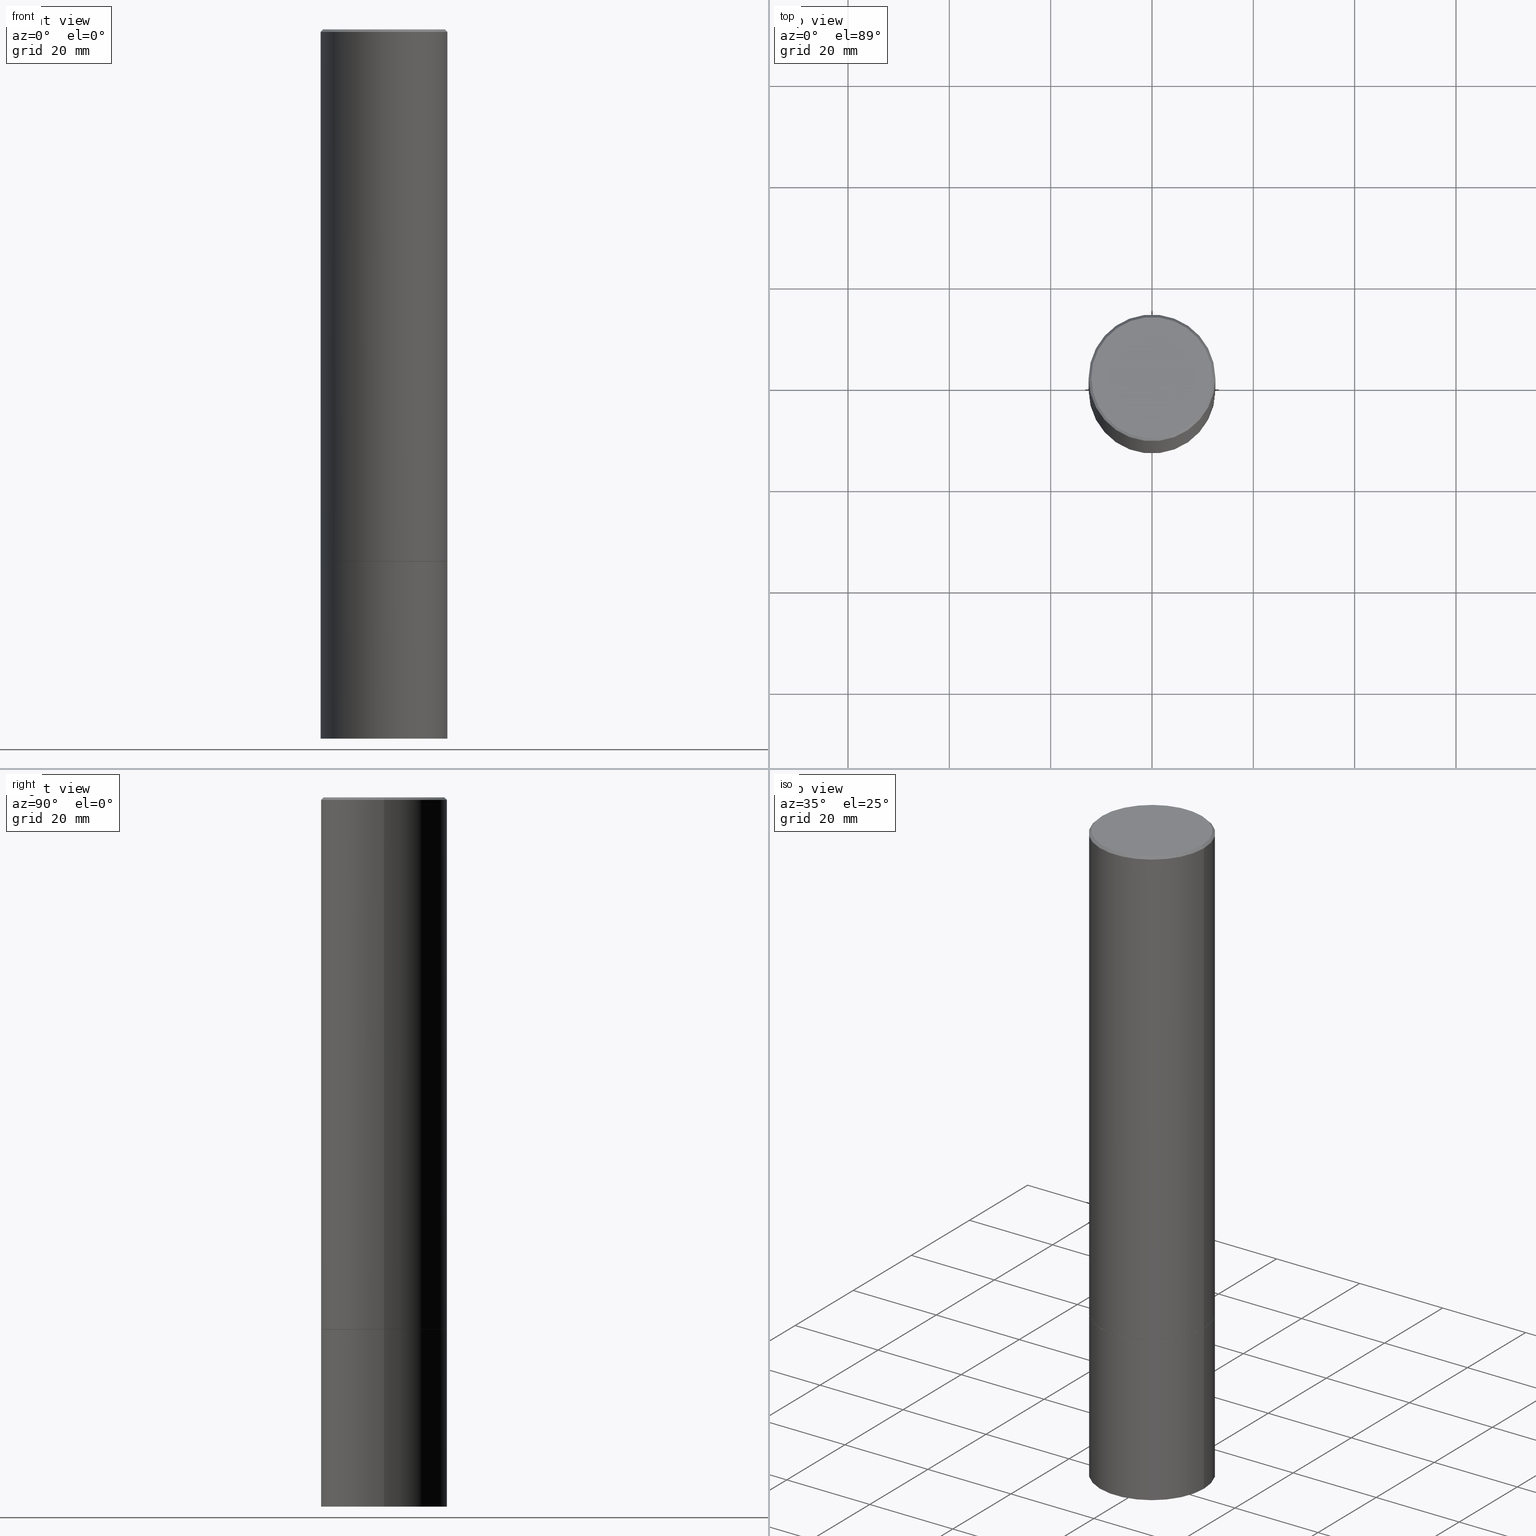
[diagram: canonical four-view strip — front | top / right | iso, engineering-drawing reading convention]
A machine part, canonical four-view strip (front | top / right | iso — engineering-drawing reading convention). The complete STEP part file that produces these views, byte-faithful:
ISO-10303-21;
HEADER;
FILE_DESCRIPTION (( 'STEP AP203' ),
    '1' );
FILE_NAME ('45017.STEP',
    '2024-02-28T08:42:57',
    ( '' ),
    ( '' ),
    'SwSTEP 2.0',
    'SolidWorks 2023',
    '' );
FILE_SCHEMA (( 'CONFIG_CONTROL_DESIGN' ));
ENDSEC;

DATA;
#1 = EDGE_CURVE ( 'NONE', #331, #346, #47, .T. ) ;
#2 = APPROVAL ( #196, 'UNSPECIFIED' ) ;
#3 = DIRECTION ( 'NONE',  ( 0.000000000000000000, 0.000000000000000000, 1.000000000000000000 ) ) ;
#4 = CARTESIAN_POINT ( 'NONE',  ( 0.4911499999999999755, -1.786276767765540380E-14, -4.133799999999999919 ) ) ;
#5 = AXIS2_PLACEMENT_3D ( 'NONE', #360, #216, #81 ) ;
#6 = APPROVAL_STATUS ( 'not_yet_approved' ) ;
#7 = ORIENTED_EDGE ( 'NONE', *, *, #91, .T. ) ;
#8 = APPROVAL ( #32, 'UNSPECIFIED' ) ;
#9 = ORIENTED_EDGE ( 'NONE', *, *, #68, .T. ) ;
#10 = PLANE ( 'NONE',  #362 ) ;
#11 = ADVANCED_FACE ( 'NONE', ( #67 ), #49, .T. ) ;
#12 = ORIENTED_EDGE ( 'NONE', *, *, #226, .T. ) ;
#13 = VERTEX_POINT ( 'NONE', #352 ) ;
#14 = AXIS2_PLACEMENT_3D ( 'NONE', #183, #287, #261 ) ;
#15 = LOCAL_TIME ( 3, 42, 57.00000000000000000, #181 ) ;
#16 = ORIENTED_EDGE ( 'NONE', *, *, #159, .F. ) ;
#17 =( NAMED_UNIT ( * ) PLANE_ANGLE_UNIT ( ) SI_UNIT ( $, .RADIAN. ) );
#18 = CARTESIAN_POINT ( 'NONE',  ( 4.890937612370302060E-31, -6.982962677686331052E-17, -0.02000000000000011491 ) ) ;
#19 = ADVANCED_FACE ( 'NONE', ( #126 ), #354, .T. ) ;
#20 = MANIFOLD_SOLID_BREP ( 'Body-Move/Copy2[1]', #177 ) ;
#21 = DIRECTION ( 'NONE',  ( 1.000000000000000000, -6.982962677686264344E-15, 0.000000000000000000 ) ) ;
#22 = ORIENTED_EDGE ( 'NONE', *, *, #62, .T. ) ;
#23 = AXIS2_PLACEMENT_3D ( 'NONE', #28, #253, #93 ) ;
#24 = DIRECTION ( 'NONE',  ( -2.445468806185136597E-29, 3.491481338843145583E-15, 1.000000000000000000 ) ) ;
#25 = EDGE_LOOP ( 'NONE', ( #296, #29 ) ) ;
#26 = ORIENTED_EDGE ( 'NONE', *, *, #1, .F. ) ;
#27 = PERSON_AND_ORGANIZATION ( #41, #255 ) ;
#28 = CARTESIAN_POINT ( 'NONE',  ( -2.087702828670439639E-46, 2.980686340760894400E-32, 8.537024980200822558E-18 ) ) ;
#29 = ORIENTED_EDGE ( 'NONE', *, *, #124, .F. ) ;
#30 = APPROVAL_ROLE ( '' ) ;
#31 = AXIS2_PLACEMENT_3D ( 'NONE', #102, #301, #192 ) ;
#32 = APPROVAL_STATUS ( 'not_yet_approved' ) ;
#33 = DIRECTION ( 'NONE',  ( -1.000000000000000000, 6.982962677686265922E-15, 0.000000000000000000 ) ) ;
#34 = DIRECTION ( 'NONE',  ( -2.445468806185136597E-29, 3.491481338843145583E-15, 1.000000000000000000 ) ) ;
#35 = FACE_OUTER_BOUND ( 'NONE', #25, .T. ) ;
#36 = CALENDAR_DATE ( 2024, 28, 2 ) ;
#37 = CC_DESIGN_APPROVAL ( #8, ( #136 ) ) ;
#38 = APPLICATION_CONTEXT ( 'configuration controlled 3d designs of mechanical parts and assemblies' ) ;
#39 = VERTEX_POINT ( 'NONE', #52 ) ;
#40 = PERSON_AND_ORGANIZATION_ROLE ( 'creator' ) ;
#41 = PERSON ( 'UNSPECIFIED', 'UNSPECIFIED', 'UNSPECIFIED', ('UNSPECIFIED'), ('UNSPECIFIED'), ('UNSPECIFIED') ) ;
#42 = DATE_TIME_ROLE ( 'classification_date' ) ;
#43 = ORIENTED_EDGE ( 'NONE', *, *, #267, .F. ) ;
#44 = AXIS2_PLACEMENT_3D ( 'NONE', #231, #94, #350 ) ;
#45 = ADVANCED_FACE ( 'NONE', ( #223 ), #222, .T. ) ;
#46 = DIRECTION ( 'NONE',  ( 1.000000000000000000, -6.982962677686265922E-15, 0.000000000000000000 ) ) ;
#47 = LINE ( 'NONE', #164, #191 ) ;
#48 = CARTESIAN_POINT ( 'NONE',  ( 0.4921499999999999764, -1.786975064033308982E-14, -4.133799999999999919 ) ) ;
#49 = CONICAL_SURFACE ( 'NONE', #14, 0.4921499999999996433, 0.7853981633974449483 ) ;
#50 = CIRCLE ( 'NONE', #363, 0.4921499999999999764 ) ;
#51 = APPLICATION_PROTOCOL_DEFINITION ( 'international standard', 'config_control_design', 1994, #38 ) ;
#52 = CARTESIAN_POINT ( 'NONE',  ( -0.4721499999999996255, 3.331920641657998857E-15, 8.537024980177643606E-18 ) ) ;
#53 = LINE ( 'NONE', #285, #299 ) ;
#54 = CARTESIAN_POINT ( 'NONE',  ( 0.000000000000000000, 0.000000000000000000, 0.000000000000000000 ) ) ;
#55 = CYLINDRICAL_SURFACE ( 'NONE', #212, 0.4921499999999998098 ) ;
#56 = EDGE_LOOP ( 'NONE', ( #26, #70, #278, #305 ) ) ;
#57 = VECTOR ( 'NONE', #337, 39.37007874015748143 ) ;
#58 = DIRECTION ( 'NONE',  ( -0.7071067811865451302, 2.468850131082231817E-15, -0.7071067811865499042 ) ) ;
#59 = CALENDAR_DATE ( 2024, 28, 2 ) ;
#60 = CARTESIAN_POINT ( 'NONE',  ( -0.4921499999999996433, 3.366835455046430112E-15, -0.02000000000000011491 ) ) ;
#61 = CARTESIAN_POINT ( 'NONE',  ( 0.000000000000000000, 0.000000000000000000, 0.000000000000000000 ) ) ;
#62 = EDGE_CURVE ( 'NONE', #330, #224, #202, .T. ) ;
#63 = CARTESIAN_POINT ( 'NONE',  ( 1.347893496593123646E-28, -1.924434684343564878E-14, -5.511800000000000033 ) ) ;
#64 = CIRCLE ( 'NONE', #112, 0.4921499999999996433 ) ;
#65 = CYLINDRICAL_SURFACE ( 'NONE', #76, 0.4921499999999999764 ) ;
#66 = APPROVAL_DATE_TIME ( #252, #8 ) ;
#67 = FACE_OUTER_BOUND ( 'NONE', #237, .T. ) ;
#68 = EDGE_CURVE ( 'NONE', #219, #13, #101, .T. ) ;
#69 = PERSON_AND_ORGANIZATION ( #41, #255 ) ;
#70 = ORIENTED_EDGE ( 'NONE', *, *, #201, .T. ) ;
#71 = LOCAL_TIME ( 3, 42, 57.00000000000000000, #92 ) ;
#72 = APPROVAL_DATE_TIME ( #236, #150 ) ;
#73 = CARTESIAN_POINT ( 'NONE',  ( 0.4921499999999999764, -3.436665081823295777E-15, 2.399810400207969603E-29 ) ) ;
#74 = PERSON_AND_ORGANIZATION_ROLE ( 'classification_officer' ) ;
#75 = ORIENTED_EDGE ( 'NONE', *, *, #179, .T. ) ;
#76 = AXIS2_PLACEMENT_3D ( 'NONE', #117, #115, #99 ) ;
#77 =( CONVERSION_BASED_UNIT ( 'INCH', #215 ) LENGTH_UNIT ( ) NAMED_UNIT ( #166 ) );
#78 = ORIENTED_EDGE ( 'NONE', *, *, #333, .F. ) ;
#79 =( NAMED_UNIT ( * ) SI_UNIT ( $, .STERADIAN. ) SOLID_ANGLE_UNIT ( ) );
#80 = DIRECTION ( 'NONE',  ( -2.445468806185136597E-29, 3.491481338843145583E-15, 1.000000000000000000 ) ) ;
#81 = DIRECTION ( 'NONE',  ( 1.000000000000000000, -6.982962677686265922E-15, 4.876006802227162976E-29 ) ) ;
#82 = CARTESIAN_POINT ( 'NONE',  ( 0.4721499999999996255, -3.342703923013973002E-15, 8.537024980224040028E-18 ) ) ;
#83 = FACE_OUTER_BOUND ( 'NONE', #298, .T. ) ;
#84 = CC_DESIGN_PERSON_AND_ORGANIZATION_ASSIGNMENT ( #69, #234, ( #318 ) ) ;
#85 = ORIENTED_EDGE ( 'NONE', *, *, #91, .F. ) ;
#86 = CARTESIAN_POINT ( 'NONE',  ( 1.010907895100811684E-28, -1.443308555850979562E-14, -4.133799999999999919 ) ) ;
#87 = CIRCLE ( 'NONE', #162, 0.4921500000000000319 ) ;
#88 = ORIENTED_EDGE ( 'NONE', *, *, #100, .T. ) ;
#89 = DATE_TIME_ROLE ( 'creation_date' ) ;
#90 = CARTESIAN_POINT ( 'NONE',  ( 3.436665081823430672E-15, 0.4921499999999807140, -5.511800000000001809 ) ) ;
#91 = EDGE_CURVE ( 'NONE', #39, #346, #348, .T. ) ;
#92 = COORDINATED_UNIVERSAL_TIME_OFFSET ( 5, 0, .BEHIND. ) ;
#93 = DIRECTION ( 'NONE',  ( 1.000000000000000000, -6.982962677686265922E-15, 4.876006802227162976E-29 ) ) ;
#94 = DIRECTION ( 'NONE',  ( -2.445468806185136597E-29, 3.491481338843145583E-15, 1.000000000000000000 ) ) ;
#95 = DESIGN_CONTEXT ( 'detailed design', #190, 'design' ) ;
#96 = AXIS2_PLACEMENT_3D ( 'NONE', #198, #214, #329 ) ;
#97 = SECURITY_CLASSIFICATION ( '', '', #104 ) ;
#98 = LOCAL_TIME ( 3, 42, 57.00000000000000000, #209 ) ;
#99 = DIRECTION ( 'NONE',  ( 1.000000000000000000, -6.982962677686265922E-15, 4.876176775795935793E-29 ) ) ;
#100 = EDGE_CURVE ( 'NONE', #116, #316, #138, .T. ) ;
#101 = CIRCLE ( 'NONE', #128, 0.4921499999999999764 ) ;
#102 = CARTESIAN_POINT ( 'NONE',  ( 0.000000000000000000, 0.000000000000000000, 0.000000000000000000 ) ) ;
#103 = ADVANCED_FACE ( 'NONE', ( #314 ), #65, .T. ) ;
#104 = SECURITY_CLASSIFICATION_LEVEL ( 'unclassified' ) ;
#105 = ORIENTED_EDGE ( 'NONE', *, *, #165, .T. ) ;
#106 = CARTESIAN_POINT ( 'NONE',  ( 4.890937612370302060E-31, -6.982962677686331052E-17, -0.02000000000000011491 ) ) ;
#107 = CONICAL_SURFACE ( 'NONE', #306, 0.4911499999999999755, 0.7853981633975849475 ) ;
#108 = CIRCLE ( 'NONE', #23, 0.4721499999999996255 ) ;
#109 = CARTESIAN_POINT ( 'NONE',  ( 0.4911499999999999755, -1.786276767765540380E-14, -4.133799999999999919 ) ) ;
#110 = ORIENTED_EDGE ( 'NONE', *, *, #155, .T. ) ;
#111 = CARTESIAN_POINT ( 'NONE',  ( -0.4921499999999999764, -1.334178012692939009E-14, -4.133799999999999919 ) ) ;
#112 = AXIS2_PLACEMENT_3D ( 'NONE', #106, #326, #46 ) ;
#113 = EDGE_CURVE ( 'NONE', #355, #331, #87, .T. ) ;
#114 = ORIENTED_EDGE ( 'NONE', *, *, #68, .F. ) ;
#115 = DIRECTION ( 'NONE',  ( -2.445468806185136597E-29, 3.491481338843145583E-15, 1.000000000000000000 ) ) ;
#116 = VERTEX_POINT ( 'NONE', #4 ) ;
#117 = CARTESIAN_POINT ( 'NONE',  ( 0.000000000000000000, 0.000000000000000000, 0.000000000000000000 ) ) ;
#118 = DIRECTION ( 'NONE',  ( -1.000000000000000000, 6.982962677686265922E-15, -4.876176775795935793E-29 ) ) ;
#119 = DIRECTION ( 'NONE',  ( -1.000000000000000000, 6.982962677686265922E-15, -4.876176775795935793E-29 ) ) ;
#120 = PRODUCT ( '45017', '45017', '', ( #310 ) ) ;
#121 = CARTESIAN_POINT ( 'NONE',  ( 1.347893496593123646E-28, -1.924434684343564878E-14, -5.511800000000000033 ) ) ;
#122 = APPROVAL_ROLE ( '' ) ;
#123 = CC_DESIGN_APPROVAL ( #150, ( #97 ) ) ;
#124 = EDGE_CURVE ( 'NONE', #316, #116, #156, .T. ) ;
#125 = ORIENTED_EDGE ( 'NONE', *, *, #113, .F. ) ;
#126 = FACE_OUTER_BOUND ( 'NONE', #145, .T. ) ;
#127 = DIRECTION ( 'NONE',  ( -2.445468806185136877E-29, 3.491481338843145188E-15, 1.000000000000000000 ) ) ;
#128 = AXIS2_PLACEMENT_3D ( 'NONE', #63, #24, #143 ) ;
#129 = CC_DESIGN_SECURITY_CLASSIFICATION ( #97, ( #318 ) ) ;
#130 = DIRECTION ( 'NONE',  ( -2.445468806185136877E-29, 3.491481338843145188E-15, 1.000000000000000000 ) ) ;
#131 = APPROVAL_DATE_TIME ( #315, #2 ) ;
#132 = ADVANCED_FACE ( 'NONE', ( #227 ), #338, .T. ) ;
#133 = AXIS2_PLACEMENT_3D ( 'NONE', #280, #309, #33 ) ;
#134 = CARTESIAN_POINT ( 'NONE',  ( -0.4921500000000000319, -3.752775777930571902E-15, -4.132800000000000473 ) ) ;
#135 = ORIENTED_EDGE ( 'NONE', *, *, #259, .T. ) ;
#136 = PRODUCT_DEFINITION ( 'UNKNOWN', '', #318, #95 ) ;
#137 = LINE ( 'NONE', #364, #57 ) ;
#138 = CIRCLE ( 'NONE', #44, 0.4911499999999999755 ) ;
#139 = VECTOR ( 'NONE', #268, 39.37007874015748143 ) ;
#140 = VERTEX_POINT ( 'NONE', #48 ) ;
#141 = ORIENTED_EDGE ( 'NONE', *, *, #217, .T. ) ;
#142 = PERSON_AND_ORGANIZATION ( #41, #255 ) ;
#143 = DIRECTION ( 'NONE',  ( 1.000000000000000000, -6.982962677686265922E-15, 0.000000000000000000 ) ) ;
#144 = COORDINATED_UNIVERSAL_TIME_OFFSET ( 5, 0, .BEHIND. ) ;
#145 = EDGE_LOOP ( 'NONE', ( #9, #289, #320, #321 ) ) ;
#146 = CARTESIAN_POINT ( 'NONE',  ( 1.010907895100811684E-28, -1.443308555850979562E-14, -4.133799999999999919 ) ) ;
#147 = ORIENTED_EDGE ( 'NONE', *, *, #259, .F. ) ;
#148 = CARTESIAN_POINT ( 'NONE',  ( 0.4921499999999998098, -3.436665081823294593E-15, 2.399810400207968762E-29 ) ) ;
#149 = LOCAL_TIME ( 3, 42, 57.00000000000000000, #339 ) ;
#150 = APPROVAL ( #6, 'UNSPECIFIED' ) ;
#151 = PERSON_AND_ORGANIZATION_ROLE ( 'creator' ) ;
#152 = MANIFOLD_SOLID_BREP ( 'Body-Move/Copy2[2]', #317 ) ;
#153 = DIRECTION ( 'NONE',  ( 1.000000000000000000, -6.982962677686265133E-15, 0.000000000000000000 ) ) ;
#154 = DIRECTION ( 'NONE',  ( -2.445468806185136597E-29, 3.491481338843145583E-15, 1.000000000000000000 ) ) ;
#155 = EDGE_CURVE ( 'NONE', #116, #355, #265, .T. ) ;
#156 = CIRCLE ( 'NONE', #247, 0.4911499999999999755 ) ;
#157 = CIRCLE ( 'NONE', #328, 0.4921499999999999764 ) ;
#158 = ORIENTED_EDGE ( 'NONE', *, *, #1, .T. ) ;
#159 = EDGE_CURVE ( 'NONE', #13, #366, #53, .T. ) ;
#160 = EDGE_LOOP ( 'NONE', ( #358, #254, #7, #75 ) ) ;
#161 = DIRECTION ( 'NONE',  ( 1.000000000000000000, -6.982962677686265922E-15, 0.000000000000000000 ) ) ;
#162 = AXIS2_PLACEMENT_3D ( 'NONE', #284, #34, #153 ) ;
#163 = ORIENTED_EDGE ( 'NONE', *, *, #124, .T. ) ;
#164 = CARTESIAN_POINT ( 'NONE',  ( -0.4921499999999998098, 3.496936074043331714E-15, -2.420853904668950949E-29 ) ) ;
#165 = EDGE_CURVE ( 'NONE', #219, #140, #208, .T. ) ;
#166 = DIMENSIONAL_EXPONENTS ( 1.000000000000000000, 0.000000000000000000, 0.000000000000000000, 0.000000000000000000, 0.000000000000000000, 0.000000000000000000, 0.000000000000000000 ) ;
#167 = ADVANCED_BREP_SHAPE_REPRESENTATION ( '45017', ( #20, #152, #180 ), #195 ) ;
#168 = DIRECTION ( 'NONE',  ( 1.000000000000000000, -6.982962677686261977E-15, 0.000000000000000000 ) ) ;
#169 = FACE_OUTER_BOUND ( 'NONE', #257, .T. ) ;
#170 = AXIS2_PLACEMENT_3D ( 'NONE', #54, #80, #221 ) ;
#171 = EDGE_LOOP ( 'NONE', ( #12, #293 ) ) ;
#172 = DIRECTION ( 'NONE',  ( -2.445468806185136597E-29, 3.491481338843145583E-15, 1.000000000000000000 ) ) ;
#173 = CC_DESIGN_PERSON_AND_ORGANIZATION_ASSIGNMENT ( #228, #151, ( #136 ) ) ;
#174 = DIRECTION ( 'NONE',  ( 1.000000000000000000, -6.982962677686261977E-15, 0.000000000000000000 ) ) ;
#175 = CARTESIAN_POINT ( 'NONE',  ( 1.010907895100811684E-28, -1.443308555850979562E-14, -4.133799999999999919 ) ) ;
#176 = DIRECTION ( 'NONE',  ( -2.445468806185136597E-29, 3.491481338843145583E-15, 1.000000000000000000 ) ) ;
#177 = CLOSED_SHELL ( 'NONE', ( #19, #132, #276, #103 ) ) ;
#178 = FACE_OUTER_BOUND ( 'NONE', #160, .T. ) ;
#179 = EDGE_CURVE ( 'NONE', #346, #224, #64, .T. ) ;
#180 = AXIS2_PLACEMENT_3D ( 'NONE', #61, #3, #344 ) ;
#181 = COORDINATED_UNIVERSAL_TIME_OFFSET ( 5, 0, .BEHIND. ) ;
#182 = PRODUCT_DEFINITION_SHAPE ( 'NONE', 'NONE',  #136 ) ;
#183 = CARTESIAN_POINT ( 'NONE',  ( 4.890937612370302060E-31, -6.982962677686331052E-17, -0.02000000000000011491 ) ) ;
#184 = SHAPE_DEFINITION_REPRESENTATION ( #182, #167 ) ;
#185 = PERSON_AND_ORGANIZATION ( #41, #255 ) ;
#186 = VECTOR ( 'NONE', #311, 39.37007874015748143 ) ;
#187 = ORIENTED_EDGE ( 'NONE', *, *, #217, .F. ) ;
#188 = ORIENTED_EDGE ( 'NONE', *, *, #297, .T. ) ;
#189 = ADVANCED_FACE ( 'NONE', ( #264 ), #10, .F. ) ;
#190 = APPLICATION_CONTEXT ( 'configuration controlled 3d designs of mechanical parts and assemblies' ) ;
#191 = VECTOR ( 'NONE', #206, 39.37007874015748143 ) ;
#192 = DIRECTION ( 'NONE',  ( 1.000000000000000000, -6.982962677686265922E-15, 4.876176775795935793E-29 ) ) ;
#193 = DIRECTION ( 'NONE',  ( -2.445468806185136597E-29, 3.491481338843145583E-15, 1.000000000000000000 ) ) ;
#194 = VECTOR ( 'NONE', #130, 39.37007874015748143 ) ;
#195 =( GEOMETRIC_REPRESENTATION_CONTEXT ( 3 ) GLOBAL_UNCERTAINTY_ASSIGNED_CONTEXT ( ( #233 ) ) GLOBAL_UNIT_ASSIGNED_CONTEXT ( ( #77, #17, #79 ) ) REPRESENTATION_CONTEXT ( 'NONE', 'WORKASPACE' ) );
#196 = APPROVAL_STATUS ( 'not_yet_approved' ) ;
#197 = DIRECTION ( 'NONE',  ( 2.438088387897960049E-29, -3.491481338843145188E-15, -1.000000000000000000 ) ) ;
#198 = CARTESIAN_POINT ( 'NONE',  ( 1.010663348220193347E-28, -1.442959407717095419E-14, -4.132800000000000473 ) ) ;
#199 = EDGE_LOOP ( 'NONE', ( #88, #135, #125, #225 ) ) ;
#200 = CARTESIAN_POINT ( 'NONE',  ( 3.436665081823396751E-15, 0.4921499999999855435, -4.133800000000001695 ) ) ;
#201 = EDGE_CURVE ( 'NONE', #331, #355, #286, .T. ) ;
#202 = LINE ( 'NONE', #279, #186 ) ;
#203 = PLANE ( 'NONE',  #300 ) ;
#204 = APPROVAL_PERSON_ORGANIZATION ( #142, #8, #122 ) ;
#205 = CC_DESIGN_DATE_AND_TIME_ASSIGNMENT ( #207, #42, ( #97 ) ) ;
#206 = DIRECTION ( 'NONE',  ( -2.445468806185136877E-29, 3.491481338843145188E-15, 1.000000000000000000 ) ) ;
#207 = DATE_AND_TIME ( #351, #15 ) ;
#208 = LINE ( 'NONE', #73, #194 ) ;
#209 = COORDINATED_UNIVERSAL_TIME_OFFSET ( 5, 0, .BEHIND. ) ;
#210 = ADVANCED_FACE ( 'NONE', ( #169 ), #269, .T. ) ;
#211 = DIRECTION ( 'NONE',  ( -1.000000000000000000, 6.982962677686265922E-15, -4.876176775795935793E-29 ) ) ;
#212 = AXIS2_PLACEMENT_3D ( 'NONE', #273, #335, #357 ) ;
#213 = DIRECTION ( 'NONE',  ( 0.7071067811866441621, -2.468850131083269169E-15, 0.7071067811864508723 ) ) ;
#214 = DIRECTION ( 'NONE',  ( -2.445468806185136597E-29, 3.491481338843145583E-15, 1.000000000000000000 ) ) ;
#215 = LENGTH_MEASURE_WITH_UNIT ( LENGTH_MEASURE( 0.02539999999999999897 ), #271 );
#216 = DIRECTION ( 'NONE',  ( -2.445468806185136597E-29, 3.491481338843145583E-15, 1.000000000000000000 ) ) ;
#217 = EDGE_CURVE ( 'NONE', #224, #346, #327, .T. ) ;
#218 = ORIENTED_EDGE ( 'NONE', *, *, #333, .T. ) ;
#219 = VERTEX_POINT ( 'NONE', #272 ) ;
#220 = CARTESIAN_POINT ( 'NONE',  ( 1.010907895100811684E-28, -1.443308555850979562E-14, -4.133799999999999919 ) ) ;
#221 = DIRECTION ( 'NONE',  ( 1.000000000000000000, -6.982962677686265922E-15, 4.876176775795935793E-29 ) ) ;
#222 = CONICAL_SURFACE ( 'NONE', #263, 0.4911499999999999755, 0.7853981633975849475 ) ;
#223 = FACE_OUTER_BOUND ( 'NONE', #199, .T. ) ;
#224 = VERTEX_POINT ( 'NONE', #336 ) ;
#225 = ORIENTED_EDGE ( 'NONE', *, *, #155, .F. ) ;
#226 = EDGE_CURVE ( 'NONE', #39, #330, #229, .T. ) ;
#227 = FACE_OUTER_BOUND ( 'NONE', #270, .T. ) ;
#228 = PERSON_AND_ORGANIZATION ( #41, #255 ) ;
#229 = CIRCLE ( 'NONE', #5, 0.4721499999999996255 ) ;
#230 = CC_DESIGN_PERSON_AND_ORGANIZATION_ASSIGNMENT ( #27, #281, ( #120 ) ) ;
#231 = CARTESIAN_POINT ( 'NONE',  ( 1.010907895100811684E-28, -1.443308555850979562E-14, -4.133799999999999919 ) ) ;
#232 = LINE ( 'NONE', #148, #139 ) ;
#233 = UNCERTAINTY_MEASURE_WITH_UNIT (LENGTH_MEASURE( 1.000000000000000082E-05 ), #77, 'distance_accuracy_value', 'NONE');
#234 = PERSON_AND_ORGANIZATION_ROLE ( 'design_supplier' ) ;
#235 = ORIENTED_EDGE ( 'NONE', *, *, #297, .F. ) ;
#236 = DATE_AND_TIME ( #290, #98 ) ;
#237 = EDGE_LOOP ( 'NONE', ( #43, #22, #141, #85 ) ) ;
#238 = CARTESIAN_POINT ( 'NONE',  ( 3.297005828269567997E-15, 0.4721499999999996255, -1.644234401644689488E-15 ) ) ;
#239 = FACE_OUTER_BOUND ( 'NONE', #292, .T. ) ;
#240 = AXIS2_PLACEMENT_3D ( 'NONE', #90, #197, #211 ) ;
#241 = APPROVAL_PERSON_ORGANIZATION ( #251, #2, #30 ) ;
#242 = ORIENTED_EDGE ( 'NONE', *, *, #323, .F. ) ;
#243 = ORIENTED_EDGE ( 'NONE', *, *, #343, .T. ) ;
#244 = DIRECTION ( 'NONE',  ( -2.445468806185136597E-29, 3.491481338843145583E-15, 1.000000000000000000 ) ) ;
#245 = DIRECTION ( 'NONE',  ( 1.000000000000000000, -6.982962677686265922E-15, 0.000000000000000000 ) ) ;
#246 = PRODUCT_RELATED_PRODUCT_CATEGORY ( 'detail', '', ( #120 ) ) ;
#247 = AXIS2_PLACEMENT_3D ( 'NONE', #86, #365, #341 ) ;
#248 = CARTESIAN_POINT ( 'NONE',  ( -0.4921499999999996433, 3.366835455046430112E-15, -0.02000000000000011491 ) ) ;
#249 = APPROVAL_PERSON_ORGANIZATION ( #185, #150, #319 ) ;
#250 = ADVANCED_FACE ( 'NONE', ( #83 ), #107, .T. ) ;
#251 = PERSON_AND_ORGANIZATION ( #41, #255 ) ;
#252 = DATE_AND_TIME ( #347, #71 ) ;
#253 = DIRECTION ( 'NONE',  ( -2.445468806185136597E-29, 3.491481338843145583E-15, 1.000000000000000000 ) ) ;
#254 = ORIENTED_EDGE ( 'NONE', *, *, #226, .F. ) ;
#255 = ORGANIZATION ( 'UNSPECIFIED', 'UNSPECIFIED', '' ) ;
#256 = DATE_AND_TIME ( #36, #149 ) ;
#257 = EDGE_LOOP ( 'NONE', ( #313, #158, #187, #242 ) ) ;
#258 = AXIS2_PLACEMENT_3D ( 'NONE', #18, #172, #245 ) ;
#259 = EDGE_CURVE ( 'NONE', #316, #331, #137, .T. ) ;
#260 = CC_DESIGN_PERSON_AND_ORGANIZATION_ASSIGNMENT ( #353, #74, ( #97 ) ) ;
#261 = DIRECTION ( 'NONE',  ( -1.000000000000000000, 6.982962677686265922E-15, 0.000000000000000000 ) ) ;
#262 = CC_DESIGN_DATE_AND_TIME_ASSIGNMENT ( #256, #89, ( #136 ) ) ;
#263 = AXIS2_PLACEMENT_3D ( 'NONE', #304, #176, #275 ) ;
#264 = FACE_OUTER_BOUND ( 'NONE', #171, .T. ) ;
#265 = LINE ( 'NONE', #109, #277 ) ;
#266 = DIRECTION ( 'NONE',  ( 2.438088387897960049E-29, -3.491481338843145188E-15, -1.000000000000000000 ) ) ;
#267 = EDGE_CURVE ( 'NONE', #330, #39, #108, .T. ) ;
#268 = DIRECTION ( 'NONE',  ( -2.445468806185136877E-29, 3.491481338843145188E-15, 1.000000000000000000 ) ) ;
#269 = CYLINDRICAL_SURFACE ( 'NONE', #170, 0.4921499999999998098 ) ;
#270 = EDGE_LOOP ( 'NONE', ( #114, #235 ) ) ;
#271 =( LENGTH_UNIT ( ) NAMED_UNIT ( * ) SI_UNIT ( $, .METRE. ) );
#272 = CARTESIAN_POINT ( 'NONE',  ( 0.4921499999999999764, -2.268101192525894613E-14, -5.511800000000000033 ) ) ;
#273 = CARTESIAN_POINT ( 'NONE',  ( 0.000000000000000000, 0.000000000000000000, 0.000000000000000000 ) ) ;
#274 = DIRECTION ( 'NONE',  ( -2.445468806185136597E-29, 3.491481338843145583E-15, 1.000000000000000000 ) ) ;
#275 = DIRECTION ( 'NONE',  ( 1.000000000000000000, -6.982962677686264344E-15, 0.000000000000000000 ) ) ;
#276 = ADVANCED_FACE ( 'NONE', ( #239 ), #203, .F. ) ;
#277 = VECTOR ( 'NONE', #213, 39.37007874015748143 ) ;
#278 = ORIENTED_EDGE ( 'NONE', *, *, #323, .T. ) ;
#279 = CARTESIAN_POINT ( 'NONE',  ( 0.4921499999999996433, -3.446223716380119982E-15, -0.02000000000000011491 ) ) ;
#280 = CARTESIAN_POINT ( 'NONE',  ( 4.890937612370302060E-31, -6.982962677686331052E-17, -0.02000000000000011491 ) ) ;
#281 = PERSON_AND_ORGANIZATION_ROLE ( 'design_owner' ) ;
#282 = ADVANCED_FACE ( 'NONE', ( #35 ), #308, .F. ) ;
#283 = APPLICATION_PROTOCOL_DEFINITION ( 'international standard', 'config_control_design', 1994, #190 ) ;
#284 = CARTESIAN_POINT ( 'NONE',  ( 1.010663348220193347E-28, -1.442959407717095419E-14, -4.132800000000000473 ) ) ;
#285 = CARTESIAN_POINT ( 'NONE',  ( -0.4921499999999999764, 3.496936074043332897E-15, -2.420853904668951509E-29 ) ) ;
#286 = CIRCLE ( 'NONE', #96, 0.4921500000000000319 ) ;
#287 = DIRECTION ( 'NONE',  ( 2.445468806185136597E-29, -3.491481338843145583E-15, -1.000000000000000000 ) ) ;
#288 = AXIS2_PLACEMENT_3D ( 'NONE', #220, #193, #174 ) ;
#289 = ORIENTED_EDGE ( 'NONE', *, *, #159, .T. ) ;
#290 = CALENDAR_DATE ( 2024, 28, 2 ) ;
#291 = ADVANCED_FACE ( 'NONE', ( #178 ), #356, .T. ) ;
#292 = EDGE_LOOP ( 'NONE', ( #243, #218 ) ) ;
#293 = ORIENTED_EDGE ( 'NONE', *, *, #267, .T. ) ;
#294 = VECTOR ( 'NONE', #58, 39.37007874015748143 ) ;
#295 = AXIS2_PLACEMENT_3D ( 'NONE', #146, #312, #342 ) ;
#296 = ORIENTED_EDGE ( 'NONE', *, *, #100, .F. ) ;
#297 = EDGE_CURVE ( 'NONE', #13, #219, #50, .T. ) ;
#298 = EDGE_LOOP ( 'NONE', ( #147, #163, #110, #325 ) ) ;
#299 = VECTOR ( 'NONE', #127, 39.37007874015748143 ) ;
#300 = AXIS2_PLACEMENT_3D ( 'NONE', #200, #345, #119 ) ;
#301 = DIRECTION ( 'NONE',  ( -2.445468806185136597E-29, 3.491481338843145583E-15, 1.000000000000000000 ) ) ;
#302 = EDGE_LOOP ( 'NONE', ( #16, #188, #105, #78 ) ) ;
#303 = CC_DESIGN_PERSON_AND_ORGANIZATION_ASSIGNMENT ( #322, #40, ( #318 ) ) ;
#304 = CARTESIAN_POINT ( 'NONE',  ( 1.010907895100811684E-28, -1.443308555850979562E-14, -4.133799999999999919 ) ) ;
#305 = ORIENTED_EDGE ( 'NONE', *, *, #179, .F. ) ;
#306 = AXIS2_PLACEMENT_3D ( 'NONE', #175, #274, #21 ) ;
#307 = CC_DESIGN_APPROVAL ( #2, ( #318 ) ) ;
#308 = PLANE ( 'NONE',  #295 ) ;
#309 = DIRECTION ( 'NONE',  ( 2.445468806185136597E-29, -3.491481338843145583E-15, -1.000000000000000000 ) ) ;
#310 = MECHANICAL_CONTEXT ( 'NONE', #38, 'mechanical' ) ;
#311 = DIRECTION ( 'NONE',  ( 0.7071067811865451302, -7.319954787623248157E-15, -0.7071067811865499042 ) ) ;
#312 = DIRECTION ( 'NONE',  ( -2.438088387897960049E-29, 3.491481338843145188E-15, 1.000000000000000000 ) ) ;
#313 = ORIENTED_EDGE ( 'NONE', *, *, #113, .T. ) ;
#314 = FACE_OUTER_BOUND ( 'NONE', #302, .T. ) ;
#315 = DATE_AND_TIME ( #59, #340 ) ;
#316 = VERTEX_POINT ( 'NONE', #324 ) ;
#317 = CLOSED_SHELL ( 'NONE', ( #45, #210, #11, #291, #349, #250, #282, #189 ) ) ;
#318 = PRODUCT_DEFINITION_FORMATION_WITH_SPECIFIED_SOURCE ( 'ANY', '', #120, .NOT_KNOWN. ) ;
#319 = APPROVAL_ROLE ( '' ) ;
#320 = ORIENTED_EDGE ( 'NONE', *, *, #343, .F. ) ;
#321 = ORIENTED_EDGE ( 'NONE', *, *, #165, .F. ) ;
#322 = PERSON_AND_ORGANIZATION ( #41, #255 ) ;
#323 = EDGE_CURVE ( 'NONE', #355, #224, #232, .T. ) ;
#324 = CARTESIAN_POINT ( 'NONE',  ( -0.4911499999999999755, -1.093795645747584133E-14, -4.133799999999999919 ) ) ;
#325 = ORIENTED_EDGE ( 'NONE', *, *, #201, .F. ) ;
#326 = DIRECTION ( 'NONE',  ( -2.445468806185136597E-29, 3.491481338843145583E-15, 1.000000000000000000 ) ) ;
#327 = CIRCLE ( 'NONE', #258, 0.4921499999999996433 ) ;
#328 = AXIS2_PLACEMENT_3D ( 'NONE', #361, #244, #168 ) ;
#329 = DIRECTION ( 'NONE',  ( 1.000000000000000000, -6.982962677686265133E-15, 0.000000000000000000 ) ) ;
#330 = VERTEX_POINT ( 'NONE', #82 ) ;
#331 = VERTEX_POINT ( 'NONE', #134 ) ;
#332 = CARTESIAN_POINT ( 'NONE',  ( 0.4921500000000000319, -1.786625915899424839E-14, -4.132800000000000473 ) ) ;
#333 = EDGE_CURVE ( 'NONE', #366, #140, #157, .T. ) ;
#334 = CIRCLE ( 'NONE', #288, 0.4921499999999999764 ) ;
#335 = DIRECTION ( 'NONE',  ( -2.445468806185136597E-29, 3.491481338843145583E-15, 1.000000000000000000 ) ) ;
#336 = CARTESIAN_POINT ( 'NONE',  ( 0.4921499999999996433, -3.446223716380119982E-15, -0.02000000000000011491 ) ) ;
#337 = DIRECTION ( 'NONE',  ( -0.7071067811866441621, 7.493145998870704414E-15, 0.7071067811864508723 ) ) ;
#338 = PLANE ( 'NONE',  #240 ) ;
#339 = COORDINATED_UNIVERSAL_TIME_OFFSET ( 5, 0, .BEHIND. ) ;
#340 = LOCAL_TIME ( 3, 42, 57.00000000000000000, #144 ) ;
#341 = DIRECTION ( 'NONE',  ( 1.000000000000000000, -6.982962677686264344E-15, 0.000000000000000000 ) ) ;
#342 = DIRECTION ( 'NONE',  ( 1.000000000000000000, -6.982962677686265922E-15, 4.876176775795935793E-29 ) ) ;
#343 = EDGE_CURVE ( 'NONE', #140, #366, #334, .T. ) ;
#344 = DIRECTION ( 'NONE',  ( 1.000000000000000000, 0.000000000000000000, 0.000000000000000000 ) ) ;
#345 = DIRECTION ( 'NONE',  ( 2.438088387897960049E-29, -3.491481338843145188E-15, -1.000000000000000000 ) ) ;
#346 = VERTEX_POINT ( 'NONE', #248 ) ;
#347 = CALENDAR_DATE ( 2024, 28, 2 ) ;
#348 = LINE ( 'NONE', #60, #294 ) ;
#349 = ADVANCED_FACE ( 'NONE', ( #359 ), #55, .T. ) ;
#350 = DIRECTION ( 'NONE',  ( 1.000000000000000000, -6.982962677686264344E-15, 0.000000000000000000 ) ) ;
#351 = CALENDAR_DATE ( 2024, 28, 2 ) ;
#352 = CARTESIAN_POINT ( 'NONE',  ( -0.4921499999999999764, -1.334178012692939009E-14, -5.511800000000000033 ) ) ;
#353 = PERSON_AND_ORGANIZATION ( #41, #255 ) ;
#354 = CYLINDRICAL_SURFACE ( 'NONE', #31, 0.4921499999999999764 ) ;
#355 = VERTEX_POINT ( 'NONE', #332 ) ;
#356 = CONICAL_SURFACE ( 'NONE', #133, 0.4921499999999996433, 0.7853981633974449483 ) ;
#357 = DIRECTION ( 'NONE',  ( 1.000000000000000000, -6.982962677686265922E-15, 4.876176775795935793E-29 ) ) ;
#358 = ORIENTED_EDGE ( 'NONE', *, *, #62, .F. ) ;
#359 = FACE_OUTER_BOUND ( 'NONE', #56, .T. ) ;
#360 = CARTESIAN_POINT ( 'NONE',  ( -2.087702828670439639E-46, 2.980686340760894400E-32, 8.537024980200822558E-18 ) ) ;
#361 = CARTESIAN_POINT ( 'NONE',  ( 1.010907895100811684E-28, -1.443308555850979562E-14, -4.133799999999999919 ) ) ;
#362 = AXIS2_PLACEMENT_3D ( 'NONE', #238, #266, #118 ) ;
#363 = AXIS2_PLACEMENT_3D ( 'NONE', #121, #154, #161 ) ;
#364 = CARTESIAN_POINT ( 'NONE',  ( -0.4911499999999999755, -1.094325491182406373E-14, -4.133799999999999919 ) ) ;
#365 = DIRECTION ( 'NONE',  ( -2.445468806185136597E-29, 3.491481338843145583E-15, 1.000000000000000000 ) ) ;
#366 = VERTEX_POINT ( 'NONE', #111 ) ;
ENDSEC;
END-ISO-10303-21;
